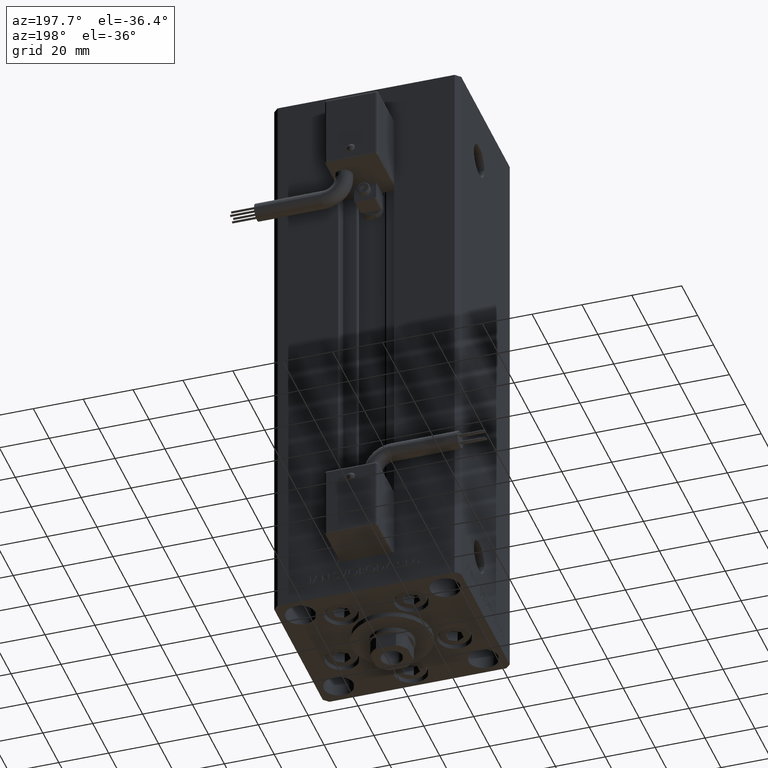
[diagram: clean part render]
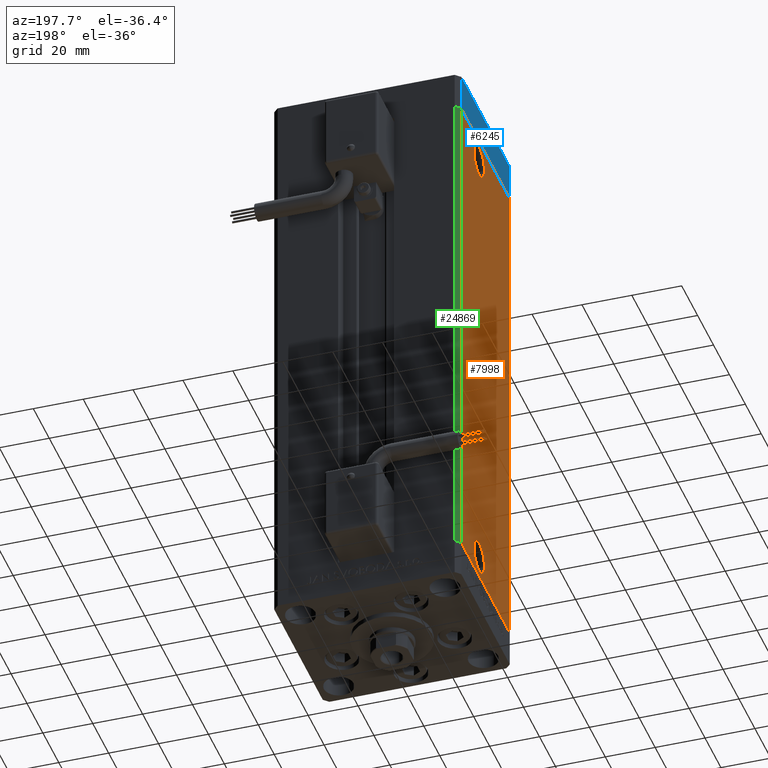
[diagram: same view with three faces highlighted in distinct colors, each labeled with its STEP entity id]
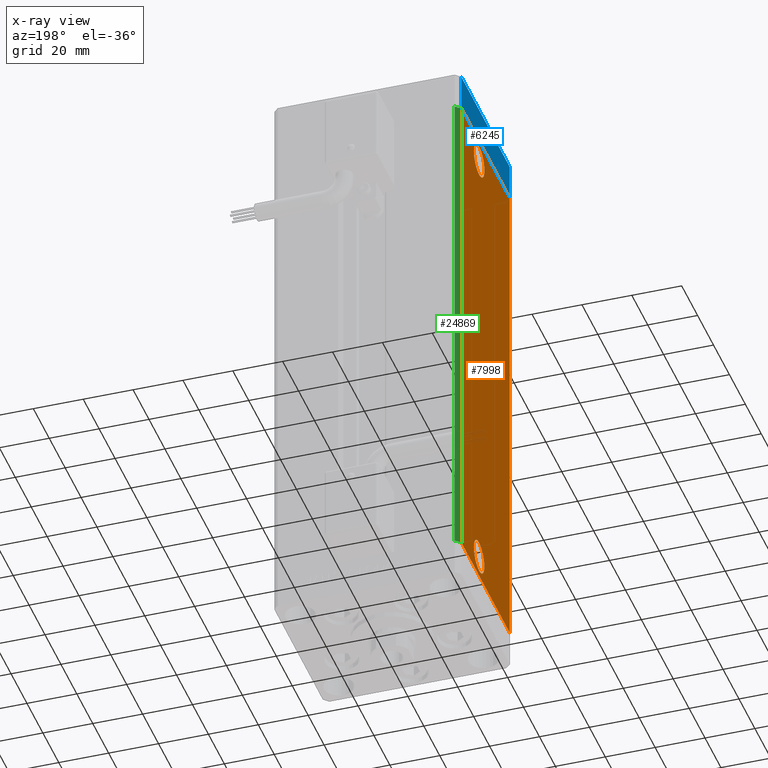
[diagram: x-ray of the same camera — body ghosted, the three highlighted faces saturated]
A machine part, auxiliary view with three faces highlighted in distinct colors.
The next image is the same camera in x-ray (body ghosted, the three faces saturated) — at least one of them is partly hidden behind the body in this view.
Their STEP definitions:

[orange] entity #7998 — the highlighted planar face has unit normal (1, 0, 0).
#1560 = FACE_BOUND ( 'NONE', #19002, .T. ) ;
#1926 = EDGE_CURVE ( 'NONE', #33824, #5817, #4368, .T. ) ;
#2024 = ORIENTED_EDGE ( 'NONE', *, *, #30202, .T. ) ;
#3700 = DIRECTION ( 'NONE',  ( 2.275047181608927644E-16, -1.000000000000000000, 0.000000000000000000 ) ) ;
#4368 = CIRCLE ( 'NONE', #40972, 6.580000000000002736 ) ;
#4647 = CARTESIAN_POINT ( 'NONE',  ( -37.50000000000000711, 30.50000000000000000, 0.000000000000000000 ) ) ;
#4970 = VERTEX_POINT ( 'NONE', #4647 ) ;
#5159 = EDGE_LOOP ( 'NONE', ( #19851, #47441 ) ) ;
#5575 = DIRECTION ( 'NONE',  ( -0.000000000000000000, -0.000000000000000000, -1.000000000000000000 ) ) ;
#5817 = VERTEX_POINT ( 'NONE', #39870 ) ;
#6183 = CARTESIAN_POINT ( 'NONE',  ( -37.50000000000000000, 1.419999999999975948, 196.9999999999999716 ) ) ;
#6585 = DIRECTION ( 'NONE',  ( -1.000000000000000000, -2.275047181608927644E-16, 0.000000000000000000 ) ) ;
#6623 = LINE ( 'NONE', #10624, #12691 ) ;
#6761 = DIRECTION ( 'NONE',  ( 0.000000000000000000, -1.000000000000000000, 0.000000000000000000 ) ) ;
#7697 = EDGE_CURVE ( 'NONE', #5817, #33824, #10558, .T. ) ;
#7998 = ADVANCED_FACE ( 'NONE', ( #50600, #1560, #17813 ), #14093, .F. ) ;
#8226 = CARTESIAN_POINT ( 'NONE',  ( -37.50000000000000000, 1.419999999999975060, 9.000000000000007105 ) ) ;
#10237 = DIRECTION ( 'NONE',  ( -1.000000000000000000, -2.275047181608927644E-16, 0.000000000000000000 ) ) ;
#10365 = CARTESIAN_POINT ( 'NONE',  ( -37.50000000000000711, 30.50000000000000000, 206.0000000000000000 ) ) ;
#10558 = CIRCLE ( 'NONE', #40368, 6.580000000000002736 ) ;
#10616 = DIRECTION ( 'NONE',  ( -2.275047181608928137E-16, 1.000000000000000000, 0.000000000000000000 ) ) ;
#10624 = CARTESIAN_POINT ( 'NONE',  ( -37.50000000000000711, 30.50000000000000000, 206.0000000000000000 ) ) ;
#10753 = EDGE_CURVE ( 'NONE', #4970, #35003, #28508, .T. ) ;
#12691 = VECTOR ( 'NONE', #3700, 1000.000000000000000 ) ;
#13079 = DIRECTION ( 'NONE',  ( -1.000000000000000000, -2.275047181608927644E-16, 0.000000000000000000 ) ) ;
#13847 = CARTESIAN_POINT ( 'NONE',  ( -37.49999999999999289, -30.50000000000000000, 206.0000000000000000 ) ) ;
#14093 = PLANE ( 'NONE',  #20807 ) ;
#14393 = VECTOR ( 'NONE', #5575, 1000.000000000000000 ) ;
#14398 = EDGE_LOOP ( 'NONE', ( #24734, #41595, #52183, #2024 ) ) ;
#14425 = ORIENTED_EDGE ( 'NONE', *, *, #49612, .F. ) ;
#17813 = FACE_OUTER_BOUND ( 'NONE', #14398, .T. ) ;
#18062 = CARTESIAN_POINT ( 'NONE',  ( -37.50000000000000000, 14.58000000000000718, 196.9999999999999716 ) ) ;
#18631 = DIRECTION ( 'NONE',  ( -0.000000000000000000, -0.000000000000000000, -1.000000000000000000 ) ) ;
#19002 = EDGE_LOOP ( 'NONE', ( #40455, #14425 ) ) ;
#19625 = EDGE_CURVE ( 'NONE', #22818, #41037, #30402, .T. ) ;
#19851 = ORIENTED_EDGE ( 'NONE', *, *, #1926, .F. ) ;
#20807 = AXIS2_PLACEMENT_3D ( 'NONE', #46594, #26630, #10616 ) ;
#21288 = CIRCLE ( 'NONE', #25551, 6.580000000000015170 ) ;
#22818 = VERTEX_POINT ( 'NONE', #6183 ) ;
#24734 = ORIENTED_EDGE ( 'NONE', *, *, #10753, .T. ) ;
#25551 = AXIS2_PLACEMENT_3D ( 'NONE', #33345, #13079, #38107 ) ;
#26630 = DIRECTION ( 'NONE',  ( 1.000000000000000000, 2.275047181608928137E-16, -0.000000000000000000 ) ) ;
#28508 = LINE ( 'NONE', #52742, #47143 ) ;
#30202 = EDGE_CURVE ( 'NONE', #31131, #4970, #43139, .T. ) ;
#30402 = CIRCLE ( 'NONE', #52512, 6.580000000000015170 ) ;
#30460 = CARTESIAN_POINT ( 'NONE',  ( -37.49999999999999289, -30.50000000000000000, 206.0000000000000000 ) ) ;
#31131 = VERTEX_POINT ( 'NONE', #42601 ) ;
#33345 = CARTESIAN_POINT ( 'NONE',  ( -37.50000000000000000, 7.999999999999991118, 196.9999999999999716 ) ) ;
#33824 = VERTEX_POINT ( 'NONE', #8226 ) ;
#34047 = VECTOR ( 'NONE', #18631, 1000.000000000000000 ) ;
#34596 = DIRECTION ( 'NONE',  ( 0.000000000000000000, -1.000000000000000000, 0.000000000000000000 ) ) ;
#35003 = VERTEX_POINT ( 'NONE', #39835 ) ;
#38107 = DIRECTION ( 'NONE',  ( 0.000000000000000000, -1.000000000000000000, 0.000000000000000000 ) ) ;
#39693 = CARTESIAN_POINT ( 'NONE',  ( -37.50000000000000000, 7.999999999999977796, 9.000000000000007105 ) ) ;
#39727 = VERTEX_POINT ( 'NONE', #30460 ) ;
#39835 = CARTESIAN_POINT ( 'NONE',  ( -37.49999999999999289, -30.50000000000000000, 0.000000000000000000 ) ) ;
#39870 = CARTESIAN_POINT ( 'NONE',  ( -37.50000000000000000, 14.57999999999998053, 9.000000000000007105 ) ) ;
#40368 = AXIS2_PLACEMENT_3D ( 'NONE', #39693, #43146, #47148 ) ;
#40455 = ORIENTED_EDGE ( 'NONE', *, *, #19625, .F. ) ;
#40742 = DIRECTION ( 'NONE',  ( 2.275047181608927644E-16, -1.000000000000000000, 0.000000000000000000 ) ) ;
#40972 = AXIS2_PLACEMENT_3D ( 'NONE', #42751, #10237, #6761 ) ;
#41037 = VERTEX_POINT ( 'NONE', #18062 ) ;
#41595 = ORIENTED_EDGE ( 'NONE', *, *, #47692, .F. ) ;
#42601 = CARTESIAN_POINT ( 'NONE',  ( -37.50000000000000711, 30.50000000000000000, 206.0000000000000000 ) ) ;
#42751 = CARTESIAN_POINT ( 'NONE',  ( -37.50000000000000000, 7.999999999999977796, 9.000000000000007105 ) ) ;
#43139 = LINE ( 'NONE', #10365, #34047 ) ;
#43146 = DIRECTION ( 'NONE',  ( -1.000000000000000000, -2.275047181608927644E-16, 0.000000000000000000 ) ) ;
#43355 = CARTESIAN_POINT ( 'NONE',  ( -37.50000000000000000, 7.999999999999991118, 196.9999999999999716 ) ) ;
#46594 = CARTESIAN_POINT ( 'NONE',  ( -37.50000000000000711, 30.50000000000000000, 206.0000000000000000 ) ) ;
#46863 = LINE ( 'NONE', #13847, #14393 ) ;
#47143 = VECTOR ( 'NONE', #40742, 1000.000000000000000 ) ;
#47148 = DIRECTION ( 'NONE',  ( 0.000000000000000000, -1.000000000000000000, 0.000000000000000000 ) ) ;
#47441 = ORIENTED_EDGE ( 'NONE', *, *, #7697, .F. ) ;
#47692 = EDGE_CURVE ( 'NONE', #39727, #35003, #46863, .T. ) ;
#47776 = EDGE_CURVE ( 'NONE', #31131, #39727, #6623, .T. ) ;
#49612 = EDGE_CURVE ( 'NONE', #41037, #22818, #21288, .T. ) ;
#50600 = FACE_BOUND ( 'NONE', #5159, .T. ) ;
#52183 = ORIENTED_EDGE ( 'NONE', *, *, #47776, .F. ) ;
#52512 = AXIS2_PLACEMENT_3D ( 'NONE', #43355, #6585, #34596 ) ;
#52742 = CARTESIAN_POINT ( 'NONE',  ( -37.50000000000000711, 30.50000000000000000, 0.000000000000000000 ) ) ;

[blue] entity #6245 — the highlighted planar face has unit normal (-1, -0, 0).
#3694 = AXIS2_PLACEMENT_3D ( 'NONE', #36607, #41125, #37376 ) ;
#4188 = CARTESIAN_POINT ( 'NONE',  ( -37.49999999999998579, -30.50000000000001421, -15.00000000000000000 ) ) ;
#4495 = CARTESIAN_POINT ( 'NONE',  ( -37.50000000000001421, 30.49999999999998579, 0.000000000000000000 ) ) ;
#4692 = VECTOR ( 'NONE', #32577, 1000.000000000000000 ) ;
#6245 = ADVANCED_FACE ( 'NONE', ( #21128 ), #40864, .T. ) ;
#6360 = CARTESIAN_POINT ( 'NONE',  ( -37.49999999999998579, -30.50000000000001421, 0.000000000000000000 ) ) ;
#10354 = CARTESIAN_POINT ( 'NONE',  ( -37.50000000000001421, 30.49999999999998579, -15.00000000000000000 ) ) ;
#10493 = VERTEX_POINT ( 'NONE', #12030 ) ;
#12030 = CARTESIAN_POINT ( 'NONE',  ( -37.50000000000001421, 30.49999999999998579, 0.000000000000000000 ) ) ;
#13682 = VECTOR ( 'NONE', #37847, 1000.000000000000000 ) ;
#13780 = EDGE_CURVE ( 'NONE', #31196, #10493, #37329, .T. ) ;
#19055 = CARTESIAN_POINT ( 'NONE',  ( -37.49999999999998579, -30.50000000000001421, -15.00000000000000000 ) ) ;
#21080 = CARTESIAN_POINT ( 'NONE',  ( -37.50000000000001421, 30.49999999999998579, -15.00000000000000000 ) ) ;
#21128 = FACE_OUTER_BOUND ( 'NONE', #52443, .T. ) ;
#22699 = VERTEX_POINT ( 'NONE', #6360 ) ;
#23736 = EDGE_CURVE ( 'NONE', #10493, #22699, #48755, .T. ) ;
#25287 = DIRECTION ( 'NONE',  ( 4.550094363217855288E-16, -1.000000000000000000, 0.000000000000000000 ) ) ;
#25604 = LINE ( 'NONE', #30131, #13682 ) ;
#25954 = ORIENTED_EDGE ( 'NONE', *, *, #32961, .T. ) ;
#30131 = CARTESIAN_POINT ( 'NONE',  ( -37.50000000000001421, 30.49999999999998579, -15.00000000000000000 ) ) ;
#31196 = VERTEX_POINT ( 'NONE', #10354 ) ;
#31321 = DIRECTION ( 'NONE',  ( 0.000000000000000000, 0.000000000000000000, 1.000000000000000000 ) ) ;
#32577 = DIRECTION ( 'NONE',  ( 0.000000000000000000, 0.000000000000000000, 1.000000000000000000 ) ) ;
#32961 = EDGE_CURVE ( 'NONE', #31196, #35749, #25604, .T. ) ;
#33785 = VECTOR ( 'NONE', #25287, 1000.000000000000000 ) ;
#34348 = VECTOR ( 'NONE', #31321, 1000.000000000000000 ) ;
#35749 = VERTEX_POINT ( 'NONE', #4188 ) ;
#36607 = CARTESIAN_POINT ( 'NONE',  ( -37.50000000000001421, 30.49999999999998579, -15.00000000000000000 ) ) ;
#37329 = LINE ( 'NONE', #21080, #4692 ) ;
#37376 = DIRECTION ( 'NONE',  ( 4.550094363217855288E-16, -1.000000000000000000, 0.000000000000000000 ) ) ;
#37847 = DIRECTION ( 'NONE',  ( 4.550094363217855288E-16, -1.000000000000000000, 0.000000000000000000 ) ) ;
#38802 = ORIENTED_EDGE ( 'NONE', *, *, #13780, .F. ) ;
#40864 = PLANE ( 'NONE',  #3694 ) ;
#41125 = DIRECTION ( 'NONE',  ( -1.000000000000000000, -4.550094363217855288E-16, 0.000000000000000000 ) ) ;
#41483 = EDGE_CURVE ( 'NONE', #35749, #22699, #47834, .T. ) ;
#47834 = LINE ( 'NONE', #19055, #34348 ) ;
#48755 = LINE ( 'NONE', #4495, #33785 ) ;
#51315 = ORIENTED_EDGE ( 'NONE', *, *, #41483, .T. ) ;
#52372 = ORIENTED_EDGE ( 'NONE', *, *, #23736, .F. ) ;
#52443 = EDGE_LOOP ( 'NONE', ( #52372, #38802, #25954, #51315 ) ) ;

[green] entity #24869 — the highlighted planar face has unit normal (0.7071, -0.7071, 0).
#139 = VERTEX_POINT ( 'NONE', #49878 ) ;
#1056 = CARTESIAN_POINT ( 'NONE',  ( -35.50000000000000000, 32.49999999999999289, 0.000000000000000000 ) ) ;
#2012 = DIRECTION ( 'NONE',  ( 0.7071067811865499042, 0.7071067811865451302, 0.000000000000000000 ) ) ;
#2263 = EDGE_LOOP ( 'NONE', ( #15386, #36780, #50179, #44160 ) ) ;
#3007 = CARTESIAN_POINT ( 'NONE',  ( -35.50000000000000000, 32.49999999999999289, 206.0000000000000000 ) ) ;
#3346 = EDGE_CURVE ( 'NONE', #139, #31131, #27545, .T. ) ;
#4647 = CARTESIAN_POINT ( 'NONE',  ( -37.50000000000000711, 30.50000000000000000, 0.000000000000000000 ) ) ;
#4970 = VERTEX_POINT ( 'NONE', #4647 ) ;
#5016 = LINE ( 'NONE', #16751, #34200 ) ;
#5746 = FACE_OUTER_BOUND ( 'NONE', #2263, .T. ) ;
#7855 = DIRECTION ( 'NONE',  ( -0.7071067811865500152, -0.7071067811865451302, 0.000000000000000000 ) ) ;
#10365 = CARTESIAN_POINT ( 'NONE',  ( -37.50000000000000711, 30.50000000000000000, 206.0000000000000000 ) ) ;
#14273 = DIRECTION ( 'NONE',  ( 0.7071067811865451302, -0.7071067811865499042, 0.000000000000000000 ) ) ;
#15386 = ORIENTED_EDGE ( 'NONE', *, *, #41671, .T. ) ;
#16751 = CARTESIAN_POINT ( 'NONE',  ( -35.50000000000000000, 32.49999999999999289, 206.0000000000000000 ) ) ;
#18631 = DIRECTION ( 'NONE',  ( -0.000000000000000000, -0.000000000000000000, -1.000000000000000000 ) ) ;
#20372 = LINE ( 'NONE', #36642, #33505 ) ;
#22025 = PLANE ( 'NONE',  #30433 ) ;
#24860 = VECTOR ( 'NONE', #35267, 1000.000000000000114 ) ;
#24869 = ADVANCED_FACE ( 'NONE', ( #5746 ), #22025, .F. ) ;
#27545 = LINE ( 'NONE', #3007, #24860 ) ;
#30202 = EDGE_CURVE ( 'NONE', #31131, #4970, #43139, .T. ) ;
#30433 = AXIS2_PLACEMENT_3D ( 'NONE', #38260, #14273, #2012 ) ;
#31131 = VERTEX_POINT ( 'NONE', #42601 ) ;
#32149 = VERTEX_POINT ( 'NONE', #1056 ) ;
#33033 = DIRECTION ( 'NONE',  ( -0.000000000000000000, -0.000000000000000000, -1.000000000000000000 ) ) ;
#33505 = VECTOR ( 'NONE', #7855, 1000.000000000000114 ) ;
#34047 = VECTOR ( 'NONE', #18631, 1000.000000000000000 ) ;
#34200 = VECTOR ( 'NONE', #33033, 1000.000000000000000 ) ;
#35267 = DIRECTION ( 'NONE',  ( -0.7071067811865500152, -0.7071067811865451302, 0.000000000000000000 ) ) ;
#36642 = CARTESIAN_POINT ( 'NONE',  ( -35.50000000000000000, 32.49999999999999289, 0.000000000000000000 ) ) ;
#36780 = ORIENTED_EDGE ( 'NONE', *, *, #30202, .F. ) ;
#38260 = CARTESIAN_POINT ( 'NONE',  ( -35.50000000000000000, 32.49999999999999289, 206.0000000000000000 ) ) ;
#38359 = EDGE_CURVE ( 'NONE', #139, #32149, #5016, .T. ) ;
#41671 = EDGE_CURVE ( 'NONE', #32149, #4970, #20372, .T. ) ;
#42601 = CARTESIAN_POINT ( 'NONE',  ( -37.50000000000000711, 30.50000000000000000, 206.0000000000000000 ) ) ;
#43139 = LINE ( 'NONE', #10365, #34047 ) ;
#44160 = ORIENTED_EDGE ( 'NONE', *, *, #38359, .T. ) ;
#49878 = CARTESIAN_POINT ( 'NONE',  ( -35.50000000000000000, 32.49999999999999289, 206.0000000000000000 ) ) ;
#50179 = ORIENTED_EDGE ( 'NONE', *, *, #3346, .F. ) ;